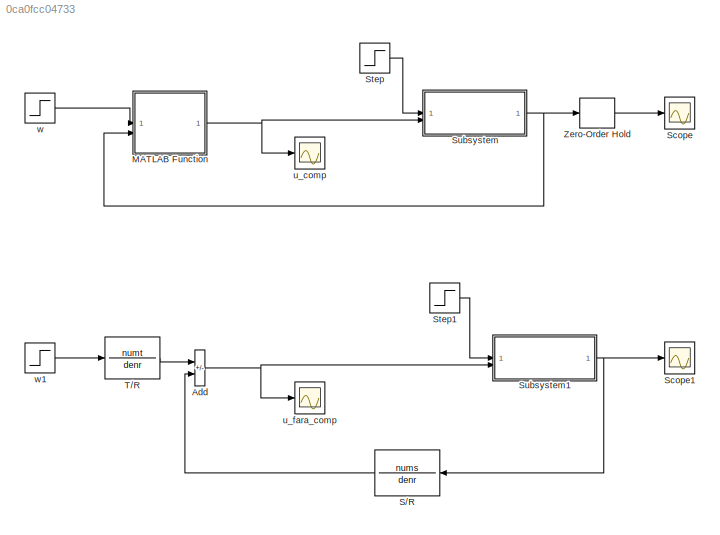
MODEL slx_0ca0fcc04733
KIND model
CONFIG AbsTol = auto
CONFIG EnableMultiTasking = off
CONFIG FixedStep = auto
CONFIG MaxStep = auto
CONFIG MinStep = auto
CONFIG RelTol = 1e-3
CONFIG SampleTimeConstraint = Unconstrained
CONFIG SolverName = VariableStepAuto
CONFIG StartTime = 0.0
CONFIG StopTime = 10
BLOCK [Sum] Add
  IconShape = rectangular
  Inputs = +-
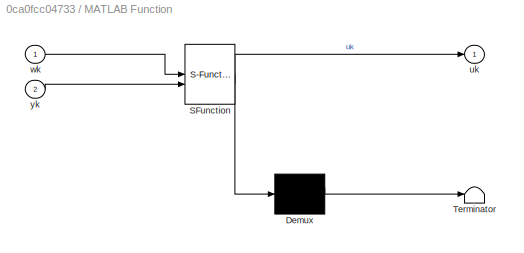
BLOCK [SubSystem] MATLAB Function
  ErrorFcn = Stateflow.Translate.translate
  PermitHierarchicalResolution = ExplicitOnly
  SFBlockType = MATLAB Function
  TreatAsAtomicUnit = on
BLOCK [Demux] MATLAB Function/ Demux 
  Outputs = 1
BLOCK [S-Function] MATLAB Function/ SFunction 
  EnableBusSupport = on
  FunctionName = sf_sfun
  Parameters = denr,nums,numt
  PortCounts = [2 2]
  SFcnIsStateOwnerBlock = off
  SFunctionDeploymentMode = off
  Tag = Stateflow S-Function 2
BLOCK [Terminator] MATLAB Function/ Terminator 
BLOCK [Outport] MATLAB Function/uk
BLOCK [Inport] MATLAB Function/wk
BLOCK [Inport] MATLAB Function/yk
  Port = 2
BLOCK [TransferFcn] S//R
  Denominator = denr
  NameLocation = top
  Numerator = nums
BLOCK [Scope] Scope
  Floating = off
  NumInputPorts = 1
  ScopeSpecificationString = Simulink.scopes.TimeScopeBlockCfg('CurrentConfiguration', extmgr.ConfigurationSet(extmgr.Configuration('Core','General UI',true),extmgr.Configuration('Core','Source UI',true),extmgr.Configuration('Sources','WiredSimulink',true),extmgr.Configuration('Visuals','Time Domain',true,'SerializedDisplays',{struct('MinYLimReal','-18879891071.68248','MaxYLimReal','2097765679.77269','YLabelReal','','MinYLimM...<+1466ch>
BLOCK [Scope] Scope1
  Floating = off
  NumInputPorts = 1
  ScopeSpecificationString = Simulink.scopes.TimeScopeBlockCfg('CurrentConfiguration', extmgr.ConfigurationSet(extmgr.Configuration('Core','General UI',true),extmgr.Configuration('Core','Source UI',true),extmgr.Configuration('Sources','WiredSimulink',true,'DataLoggingVariableName','ScopeData3'),extmgr.Configuration('Visuals','Time Domain',true,'SerializedDisplays',{struct('MinYLimReal','-36874667212982769659387283085522497474...<+2610ch>
BLOCK [Step] Step
  After = -12
  SampleTime = 0
  Time = 0.6
BLOCK [Step] Step1
  After = -12
  SampleTime = 0
  Time = 0.6
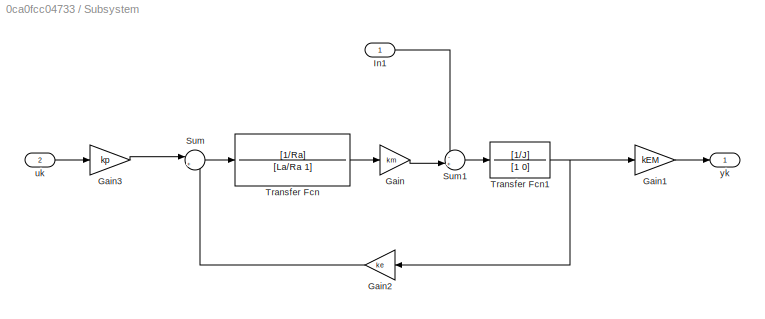
BLOCK [SubSystem] Subsystem
BLOCK [Gain] Subsystem/Gain
  Gain = km
BLOCK [Gain] Subsystem/Gain1
  Gain = kEM
BLOCK [Gain] Subsystem/Gain2
  Gain = ke
  NameLocation = top
BLOCK [Gain] Subsystem/Gain3
  Gain = kp
BLOCK [Inport] Subsystem/In1
BLOCK [Sum] Subsystem/Sum
  Inputs = |+-
BLOCK [Sum] Subsystem/Sum1
  Inputs = -+|
BLOCK [TransferFcn] Subsystem/Transfer Fcn
  Denominator = [La/Ra 1]
  Numerator = [1/Ra]
BLOCK [TransferFcn] Subsystem/Transfer Fcn1
  Denominator = [1 0]
  Numerator = [1/J]
BLOCK [Inport] Subsystem/uk
  IconDisplay = Signal name
  Port = 2
BLOCK [Outport] Subsystem/yk
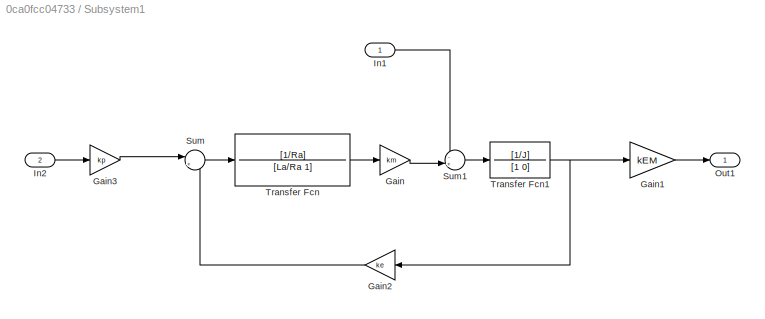
BLOCK [SubSystem] Subsystem1
BLOCK [Gain] Subsystem1/Gain
  Gain = km
BLOCK [Gain] Subsystem1/Gain1
  Gain = kEM
BLOCK [Gain] Subsystem1/Gain2
  Gain = ke
  NameLocation = top
BLOCK [Gain] Subsystem1/Gain3
  Gain = kp
BLOCK [Inport] Subsystem1/In1
BLOCK [Inport] Subsystem1/In2
  IconDisplay = Signal name
  Port = 2
BLOCK [Outport] Subsystem1/Out1
BLOCK [Sum] Subsystem1/Sum
  Inputs = |+-
BLOCK [Sum] Subsystem1/Sum1
  Inputs = -+|
BLOCK [TransferFcn] Subsystem1/Transfer Fcn
  Denominator = [La/Ra 1]
  Numerator = [1/Ra]
BLOCK [TransferFcn] Subsystem1/Transfer Fcn1
  Denominator = [1 0]
  Numerator = [1/J]
BLOCK [TransferFcn] T//R
  Denominator = denr
  Numerator = numt
BLOCK [ZeroOrderHold] Zero-Order Hold
  SampleTime = -1
BLOCK [Scope] u_comp
  Floating = off
  NumInputPorts = 1
  ScopeSpecificationString = Simulink.scopes.TimeScopeBlockCfg('CurrentConfiguration', extmgr.ConfigurationSet(extmgr.Configuration('Core','General UI',true),extmgr.Configuration('Core','Source UI',true),extmgr.Configuration('Sources','WiredSimulink',true,'DataLoggingVariableName','ScopeData1'),extmgr.Configuration('Visuals','Time Domain',true),extmgr.Configuration('Tools','Plot Navigation',true),extmgr.Configuration('Tools',...<+40ch>
BLOCK [Scope] u_fara_comp
  Floating = off
  NumInputPorts = 1
  ScopeSpecificationString = Simulink.scopes.TimeScopeBlockCfg('CurrentConfiguration', extmgr.ConfigurationSet(extmgr.Configuration('Core','General UI',true),extmgr.Configuration('Core','Source UI',true),extmgr.Configuration('Sources','WiredSimulink',true,'DataLoggingVariableName','ScopeData2'),extmgr.Configuration('Visuals','Time Domain',true),extmgr.Configuration('Tools','Plot Navigation',true),extmgr.Configuration('Tools',...<+40ch>
BLOCK [Step] w
  SampleTime = 0
BLOCK [Step] w1
  SampleTime = 0
NET Add:1 -> Subsystem1:2, u_fara_comp:1
NET MATLAB Function:1 -> Subsystem:2, u_comp:1
LINE S//R:1 -> Add:2
LINE Step1:1 -> Subsystem1:1
LINE Step:1 -> Subsystem:1
LINE Subsystem/Gain1:1 -> Subsystem/yk:1
LINE Subsystem/Gain2:1 -> Subsystem/Sum:2
LINE Subsystem/Gain3:1 -> Subsystem/Sum:1
LINE Subsystem/Gain:1 -> Subsystem/Sum1:2
LINE Subsystem/In1:1 -> Subsystem/Sum1:1
LINE Subsystem/Sum1:1 -> Subsystem/Transfer Fcn1:1
LINE Subsystem/Sum:1 -> Subsystem/Transfer Fcn:1
NET Subsystem/Transfer Fcn1:1 -> Subsystem/Gain1:1, Subsystem/Gain2:1
LINE Subsystem/Transfer Fcn:1 -> Subsystem/Gain:1
LINE Subsystem/uk:1 -> Subsystem/Gain3:1
LINE Subsystem1/Gain1:1 -> Subsystem1/Out1:1
LINE Subsystem1/Gain2:1 -> Subsystem1/Sum:2
LINE Subsystem1/Gain3:1 -> Subsystem1/Sum:1
LINE Subsystem1/Gain:1 -> Subsystem1/Sum1:2
LINE Subsystem1/In1:1 -> Subsystem1/Sum1:1
LINE Subsystem1/In2:1 -> Subsystem1/Gain3:1
LINE Subsystem1/Sum1:1 -> Subsystem1/Transfer Fcn1:1
LINE Subsystem1/Sum:1 -> Subsystem1/Transfer Fcn:1
NET Subsystem1/Transfer Fcn1:1 -> Subsystem1/Gain1:1, Subsystem1/Gain2:1
LINE Subsystem1/Transfer Fcn:1 -> Subsystem1/Gain:1
NET Subsystem1:1 -> S//R:1, Scope1:1
NET Subsystem:1 -> MATLAB Function:2, Zero-Order Hold:1
LINE T//R:1 -> Add:1
LINE Zero-Order Hold:1 -> Scope:1
LINE w1:1 -> T//R:1
LINE w:1 -> MATLAB Function:1
note: NET lines group one-source signal fan-out (src -> all destinations, sorted); 1:1 wires keep LINE
CHART MATLAB Function states=1 transitions=1
  STATE_LABEL 'eML_blk_kernel()'
  STATE_LABEL 'SCRIPT:\nfunction uk = fcn(wk,yk,nums,numt,denr)\n% nums = [s_2 s_1 s_0], numt = [t_2 0 0], denr = [1 r_1 r_0]\n\npersistent ukm1 ukm2 ykm1 ykm2\n\nif isempty(ukm1)\n    % initializare variabile\n    ukm1 = 0;\n    ukm2 = 0;\n    ykm1 = 0;\n    ykm2 = 0;\n\nend\n\nuk = -denr(2)*ukm1-denr(3)*ukm2+numt(1)*wk-nums(1)*yk-nums(2)*ykm1-nums(3)*ykm2;\n\nukm2 = ukm1;\nukm1 = uk;\nukm2 = ykm1;\nykm1 = yk;\n\nend'
CHART  states=0 transitions=0
